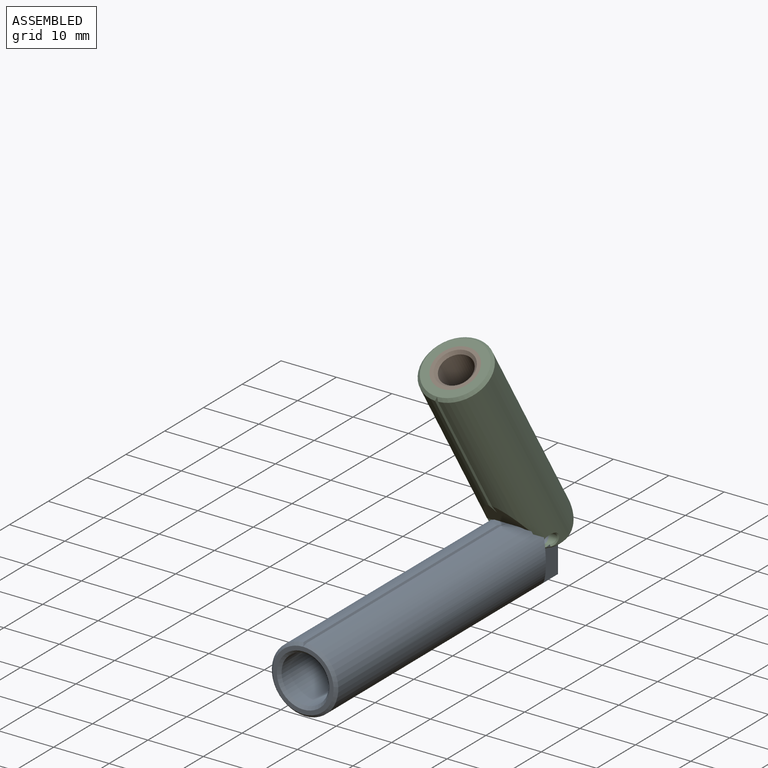
[diagram: assembled view]
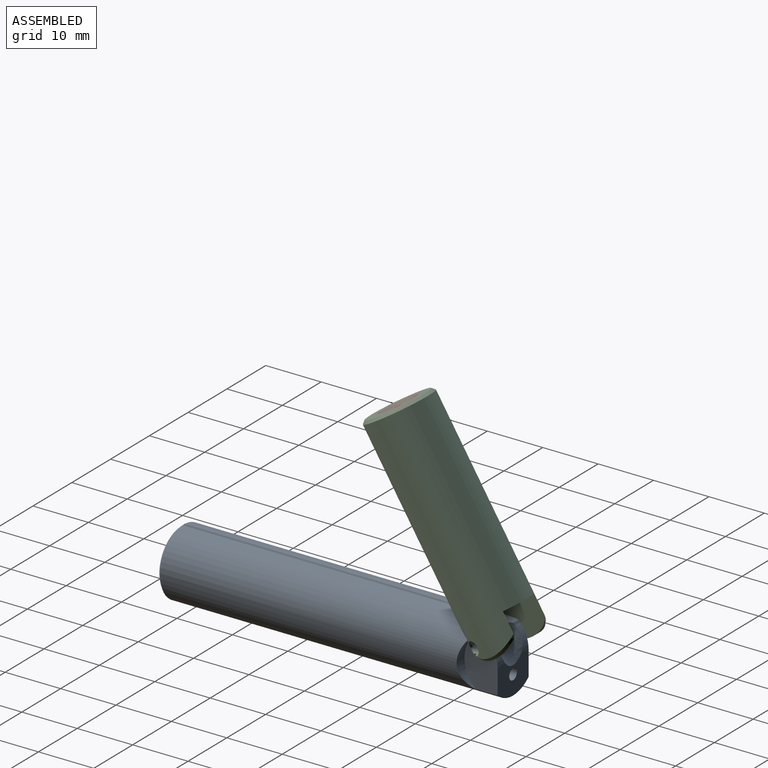
[diagram: assembled view, second angle]
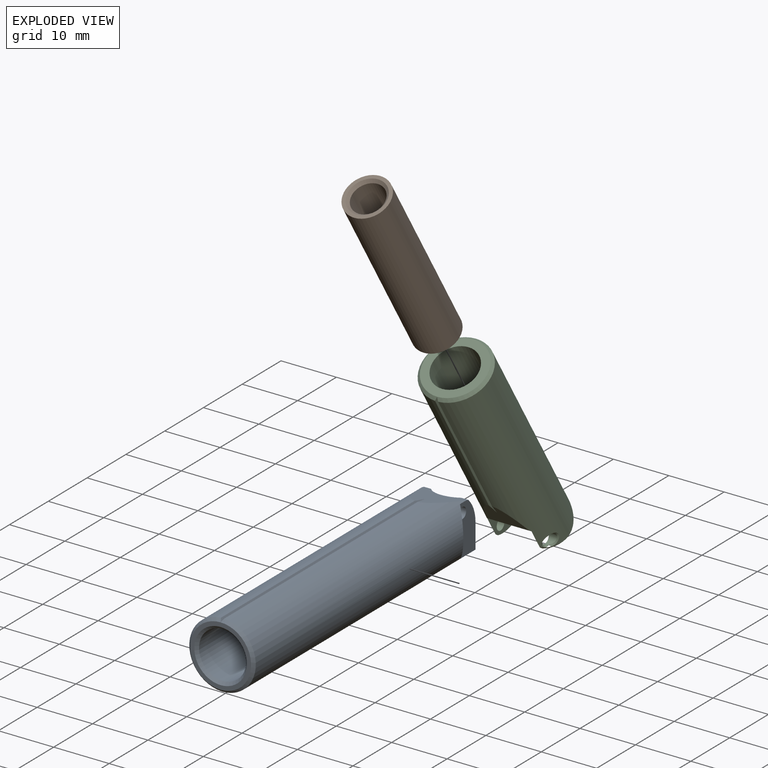
[diagram: exploded view]
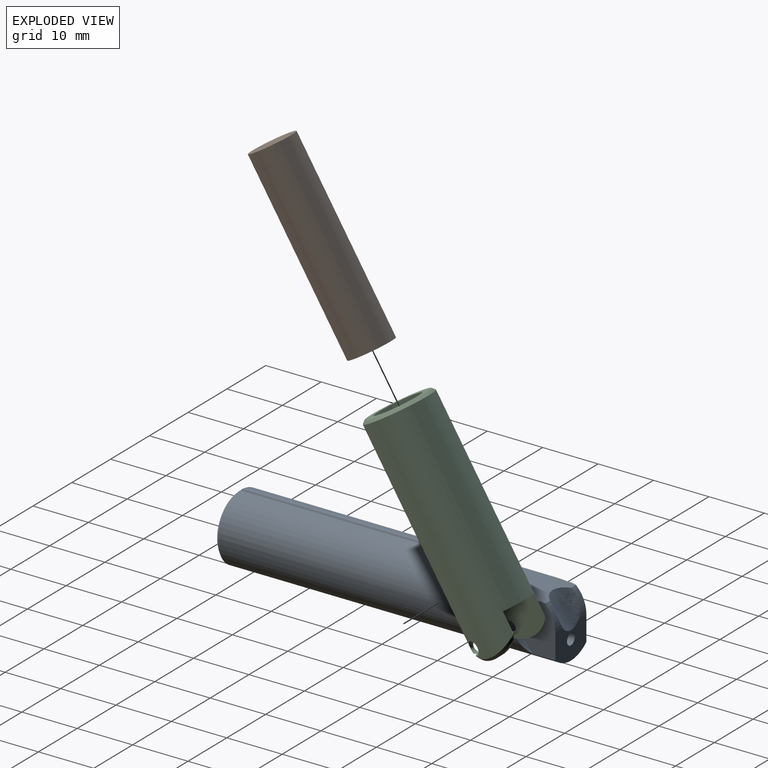
[diagram: exploded view, second angle]
ASSEMBLY  parts=3 mates=2
PART A: 20 faces, bbox 12x67.6x24.5 mm
  f0: cylinder r=6mm len=4.35mm, axis (1,0,0), area 6.1mm2, adj f5,f7,f18,f19
  f1: cylinder r=6mm len=59.5mm, axis (0,1,0), area 2044.4mm2, adj f5,f6,f7,f8,f9,f14,f15,f16
  f2: plane 11x11mm, normal (0,-1,0), area 24.2mm2, adj f16,f17
  f3: cylinder r=6mm len=4.35mm, axis (1,0,0), area 6.1mm2, adj f6,f7,f18,f19
  f4: cylinder r=1mm len=11.06mm, axis (0,1,0), area 67.6mm2, adj f7,f13
  f5: plane 8.94x6mm, normal (1,0,0), area 42.2mm2, adj f0,f1,f7,f8,f10,f18
  f6: plane 8.94x6mm, normal (-1,0,0), area 42.2mm2, adj f1,f3,f7,f9,f10,f18
  f7: plane 8x6mm, normal (0,1,0), area 38.2mm2, adj f0,f1,f3,f4,f5,f6,f19
  f8: cylinder r=6mm len=8.94mm, axis (1,0,0), area 13.3mm2, adj f1,f5
  f9: cylinder r=6mm len=8.94mm, axis (-1,0,0), area 13.3mm2, adj f1,f6
  f10: cylinder r=1mm len=8mm, axis (1,0,0), area 50.3mm2, adj f5,f6
  f11: plane 0.5x0.5mm, normal (0,-1,0), area 0.2mm2, adj f13
  f12: cylinder r=4.25mm len=48.2mm, axis (0,-1,0), area 1287.1mm2, adj f13,f17
  f13: cone r=0.25mm half-angle=72deg, axis (0,-1,0), area 56.2mm2, adj f4,f11,f12
  f14: plane 52.73x0.51mm, normal (-0.87,0,0.5), area 29.2mm2, adj f1,f15,f16,f18
  f15: plane 52.73x0.51mm, normal (0.87,0,0.5), area 29.2mm2, adj f1,f14,f16,f18
  f16: cone r=5.5mm half-angle=45deg, axis (0,1,0), area 25.4mm2, adj f1,f2,f14,f15
  f17: cone r=4.25mm half-angle=45deg, axis (0,-1,0), area 20mm2, adj f2,f12
  f18: plane 8x7.73mm, normal (0,0.21,0.98), area 38.9mm2, adj f0,f1,f3,f5,f6,f14,f15,f19
  f19: bspline ~24.46x21.32mm, area 35.1mm2, adj f0,f3,f7,f18
PART B: 7 faces, bbox 8x34x8 mm
  f0: cylinder r=2.86mm len=32.4mm, axis (0,-1,0), area 582.2mm2, adj f5,f6
  f1: plane 8x8mm, normal (0,1,0), area 14.8mm2, adj f3,f6
  f2: plane 8x8mm, normal (0,-1,0), area 10.7mm2, adj f3,f4
  f3: cylinder r=4mm len=34mm, axis (0,-1,0), area 854.5mm2, adj f1,f2
  f4: cylinder r=3.55mm len=7.1mm, axis (0,-1,0), area 24.5mm2, adj f2,f5
  f5: plane 7.1x7.1mm, normal (0,-1,0), area 13.9mm2, adj f0,f4
  f6: cone r=2.86mm half-angle=45deg, axis (0,1,0), area 13.8mm2, adj f0,f1
PART C: 21 faces, bbox 12x40x12 mm
  f0: plane 3.66x2.39mm, normal (0,-1,0), area 2.4mm2, adj f1,f19,f20
  f1: cylinder r=4mm len=34mm, axis (0,-1,0), area 854.5mm2, adj f0,f2,f17,f18,f19
  f2: plane 3.66x2.39mm, normal (0,-1,0), area 2.4mm2, adj f1,f3,f19
  f3: plane 8.98x6.44mm, normal (1,0,0), area 45mm2, adj f2,f4,f5,f7,f16,f17,f19
  f4: cylinder r=6mm len=8.24mm, axis (1,0,0), area 0mm2, adj f3,f5
  f5: bspline ~8.94x2.33mm, area 6.5mm2, adj f3,f4,f6,f7
  f6: bspline ~2.58x2.48mm, area 2.8mm2, adj f5,f7,f16
  f7: cylinder r=6mm len=39mm, axis (0,-1,0), area 1293.2mm2, adj f3,f5,f6,f8,f9,f10,f11,f12
  f8: plane 29.18x0.51mm, normal (-0.87,0,0.5), area 15.8mm2, adj f7,f9,f10,f11
  f9: cone r=6mm half-angle=45deg, axis (0,-1,0), area 25.4mm2, adj f7,f8,f10,f18
  f10: plane 29.18x0.51mm, normal (0.87,0,0.5), area 15.8mm2, adj f7,f8,f9,f11
  f11: plane 7.61x6.36mm, normal (0,-0.21,0.98), area 33.3mm2, adj f7,f8,f10,f19
  f12: bspline ~2.58x2.48mm, area 2.8mm2, adj f7,f13,f14
  f13: cylinder r=1mm len=2mm, axis (-1,0,0), area 6mm2, adj f12,f20
  f14: bspline ~8.94x2.33mm, area 6.5mm2, adj f7,f12,f15,f20
  f15: cylinder r=6mm len=8.24mm, axis (1,0,0), area 0mm2, adj f14,f20
  f16: cylinder r=1mm len=2mm, axis (-1,0,0), area 6mm2, adj f3,f6
  f17: plane 8x6mm, normal (0,-1,0), area 19mm2, adj f1,f3,f7,f20
  f18: plane 11x11mm, normal (0,1,0), area 44.8mm2, adj f1,f9
  f19: cylinder r=1mm len=8mm, axis (-1,0,0), area 10.1mm2, adj f0,f1,f2,f3,f7,f11,f20
  f20: plane 8.98x6.44mm, normal (-1,0,0), area 45mm2, adj f0,f7,f13,f14,f15,f17,f19
PLACE A t=(-14.33,21.65,-39.83)mm
PLACE B rot(axis=(1,0,0),121.9deg) t=(-14.33,27.98,-37.8)mm
PLACE C rot(axis=(1,0,0),121.9deg) t=(-14.33,27.98,-37.8)mm
MATE slider B.f3 <-> C.f1  axis (0,-0.53,0.85) through (-14.33,6.86,-3.83)mm
MATE revolute A.f10 <-> C.f13  axis (1,0,0) through (-10.33,24.25,-37.06)mm
